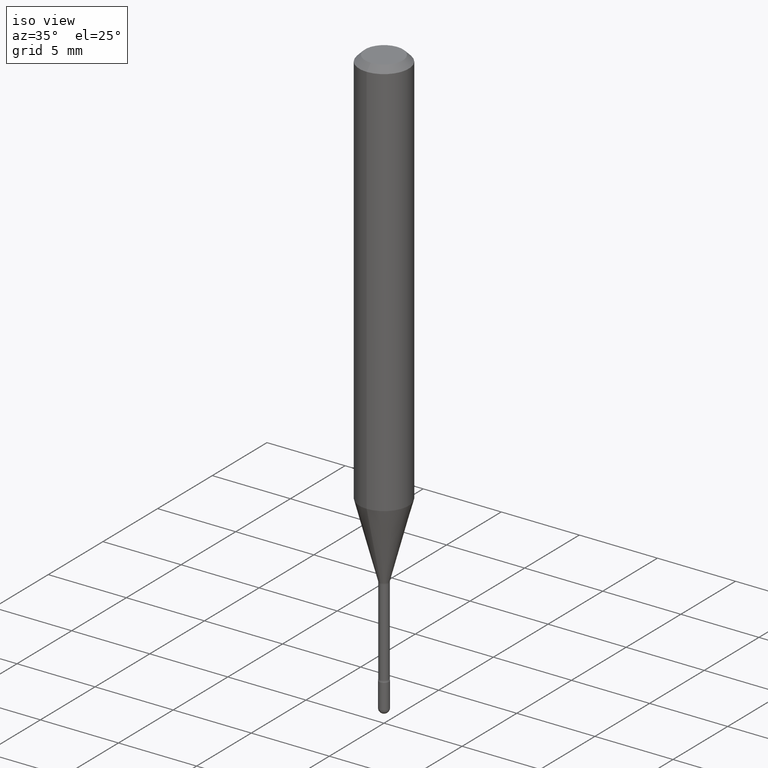
[diagram: clean part render]
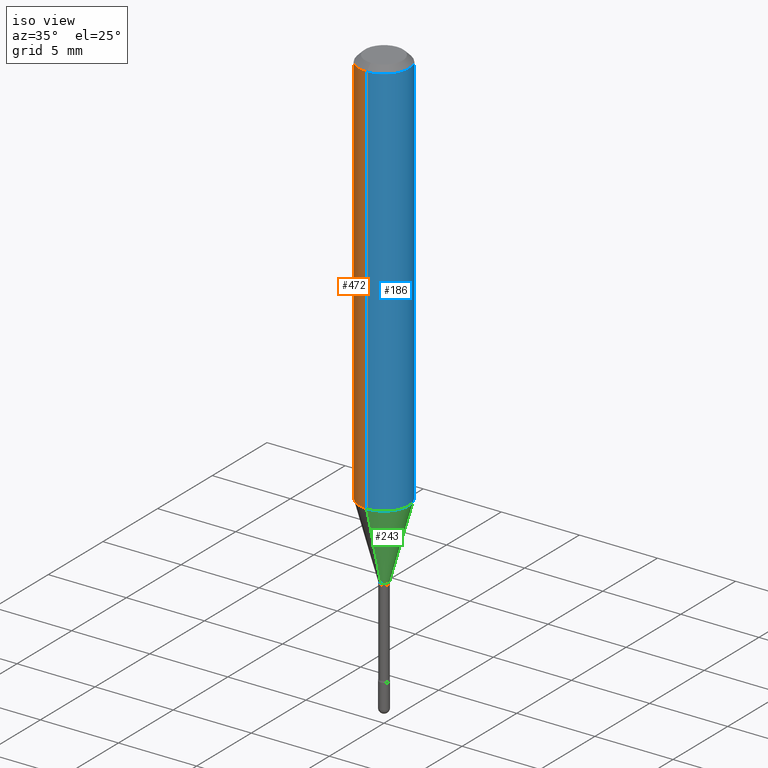
[diagram: same view with three faces highlighted in distinct colors, each labeled with its STEP entity id]
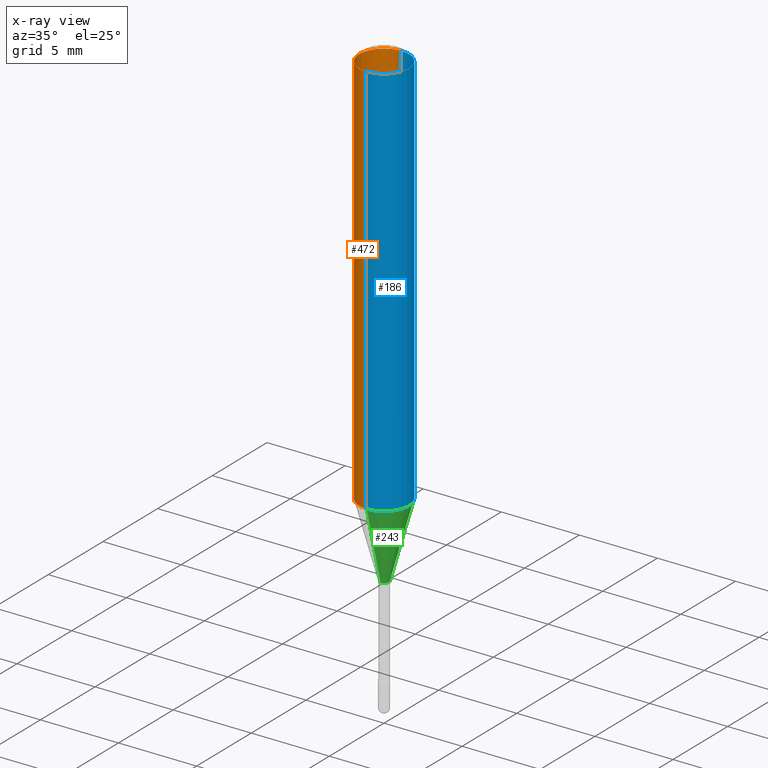
[diagram: x-ray of the same camera — body ghosted, the three highlighted faces saturated]
A machine part, iso view with three faces highlighted in distinct colors.
The next image is the same camera in x-ray (body ghosted, the three faces saturated) — at least one of them is partly hidden behind the body in this view.
Their STEP definitions:

[orange] entity #472 — the highlighted cylindrical surface (edge-blend (fillet) strip) has radius 1.5875 mm, axis along (-0, 0, 1).
#45 = ORIENTED_EDGE ( 'NONE', *, *, #428, .T. ) ;
#59 = DIRECTION ( 'NONE',  ( -2.445561478799539519E-29, 3.491348626384722725E-15, 1.000000000000000000 ) ) ;
#81 = CARTESIAN_POINT ( 'NONE',  ( -4.364351673553912750E-16, -0.06250000000000005551, -0.01499999999999986587 ) ) ;
#90 = VERTEX_POINT ( 'NONE', #372 ) ;
#97 = CARTESIAN_POINT ( 'NONE',  ( -4.364351673553670668E-16, -0.06250000000000353884, -1.010598421515879641 ) ) ;
#107 = EDGE_CURVE ( 'NONE', #260, #197, #143, .T. ) ;
#110 = CARTESIAN_POINT ( 'NONE',  ( -1.169113584055446105E-44, 1.669184350826100908E-30, 4.780733988912460139E-16 ) ) ;
#112 = VECTOR ( 'NONE', #59, 39.37007874015748143 ) ;
#137 = ORIENTED_EDGE ( 'NONE', *, *, #107, .F. ) ;
#143 = CIRCLE ( 'NONE', #460, 0.06250000000000000000 ) ;
#153 = VECTOR ( 'NONE', #309, 39.37007874015748143 ) ;
#183 = CARTESIAN_POINT ( 'NONE',  ( 4.440892098500625669E-16, 0.06250000000000000000, 2.598641097422008436E-16 ) ) ;
#187 = DIRECTION ( 'NONE',  ( -2.445561478799539239E-29, 3.491348626384723119E-15, 1.000000000000000000 ) ) ;
#190 = AXIS2_PLACEMENT_3D ( 'NONE', #110, #466, #551 ) ;
#197 = VERTEX_POINT ( 'NONE', #81 ) ;
#234 = EDGE_CURVE ( 'NONE', #90, #260, #523, .T. ) ;
#260 = VERTEX_POINT ( 'NONE', #313 ) ;
#274 = ORIENTED_EDGE ( 'NONE', *, *, #234, .F. ) ;
#281 = EDGE_LOOP ( 'NONE', ( #274, #443, #45, #137 ) ) ;
#308 = CIRCLE ( 'NONE', #322, 0.06250000000000000000 ) ;
#309 = DIRECTION ( 'NONE',  ( -2.445561478799539519E-29, 3.491348626384722725E-15, 1.000000000000000000 ) ) ;
#312 = VERTEX_POINT ( 'NONE', #97 ) ;
#313 = CARTESIAN_POINT ( 'NONE',  ( 4.440892098500874653E-16, 0.06249999999999993755, -0.01500000000000030129 ) ) ;
#317 = LINE ( 'NONE', #491, #112 ) ;
#322 = AXIS2_PLACEMENT_3D ( 'NONE', #499, #187, #528 ) ;
#328 = CARTESIAN_POINT ( 'NONE',  ( 3.668342218199329335E-31, -5.237022939577113570E-17, -0.01500000000000008271 ) ) ;
#336 = FACE_OUTER_BOUND ( 'NONE', #281, .T. ) ;
#372 = CARTESIAN_POINT ( 'NONE',  ( 4.440892098500871695E-16, 0.06249999999999647504, -1.010598421515880085 ) ) ;
#378 = DIRECTION ( 'NONE',  ( -2.445561478799539239E-29, 3.491348626384723119E-15, 1.000000000000000000 ) ) ;
#400 = EDGE_CURVE ( 'NONE', #90, #312, #308, .T. ) ;
#409 = DIRECTION ( 'NONE',  ( -6.982962677686265922E-15, -1.000000000000000000, 3.483106191921935554E-15 ) ) ;
#428 = EDGE_CURVE ( 'NONE', #312, #197, #317, .T. ) ;
#443 = ORIENTED_EDGE ( 'NONE', *, *, #400, .T. ) ;
#460 = AXIS2_PLACEMENT_3D ( 'NONE', #328, #378, #409 ) ;
#466 = DIRECTION ( 'NONE',  ( -2.445561478799539239E-29, 3.491348626384723119E-15, 1.000000000000000000 ) ) ;
#472 = ADVANCED_FACE ( 'NONE', ( #336 ), #507, .T. ) ;
#491 = CARTESIAN_POINT ( 'NONE',  ( -4.364351673553916201E-16, -0.06250000000000000000, 6.962826880402912828E-16 ) ) ;
#499 = CARTESIAN_POINT ( 'NONE',  ( 2.471480570194855478E-29, -3.528351410786036759E-15, -1.010598421515879863 ) ) ;
#507 = CYLINDRICAL_SURFACE ( 'NONE', #190, 0.06250000000000000000 ) ;
#523 = LINE ( 'NONE', #183, #153 ) ;
#528 = DIRECTION ( 'NONE',  ( -6.982962677686265922E-15, -1.000000000000000000, 4.370956789862821150E-15 ) ) ;
#551 = DIRECTION ( 'NONE',  ( -6.982962677686265922E-15, -1.000000000000000000, 3.491348626384723119E-15 ) ) ;

[blue] entity #186 — the highlighted cylindrical surface (edge-blend (fillet) strip) has radius 1.5875 mm, axis along (-0, 0, 1).
#4 = ORIENTED_EDGE ( 'NONE', *, *, #428, .F. ) ;
#23 = CIRCLE ( 'NONE', #388, 0.06250000000000000000 ) ;
#26 = DIRECTION ( 'NONE',  ( -6.982962677686265922E-15, -1.000000000000000000, 4.370956789862821150E-15 ) ) ;
#35 = FACE_OUTER_BOUND ( 'NONE', #501, .T. ) ;
#39 = CYLINDRICAL_SURFACE ( 'NONE', #113, 0.06250000000000000000 ) ;
#53 = ORIENTED_EDGE ( 'NONE', *, *, #95, .T. ) ;
#56 = ORIENTED_EDGE ( 'NONE', *, *, #234, .T. ) ;
#59 = DIRECTION ( 'NONE',  ( -2.445561478799539519E-29, 3.491348626384722725E-15, 1.000000000000000000 ) ) ;
#81 = CARTESIAN_POINT ( 'NONE',  ( -4.364351673553912750E-16, -0.06250000000000005551, -0.01499999999999986587 ) ) ;
#90 = VERTEX_POINT ( 'NONE', #372 ) ;
#95 = EDGE_CURVE ( 'NONE', #312, #90, #23, .T. ) ;
#97 = CARTESIAN_POINT ( 'NONE',  ( -4.364351673553670668E-16, -0.06250000000000353884, -1.010598421515879641 ) ) ;
#99 = AXIS2_PLACEMENT_3D ( 'NONE', #490, #176, #138 ) ;
#112 = VECTOR ( 'NONE', #59, 39.37007874015748143 ) ;
#113 = AXIS2_PLACEMENT_3D ( 'NONE', #213, #344, #514 ) ;
#138 = DIRECTION ( 'NONE',  ( -6.982962677686265922E-15, -1.000000000000000000, 3.483106191921935554E-15 ) ) ;
#153 = VECTOR ( 'NONE', #309, 39.37007874015748143 ) ;
#176 = DIRECTION ( 'NONE',  ( -2.445561478799539239E-29, 3.491348626384723119E-15, 1.000000000000000000 ) ) ;
#183 = CARTESIAN_POINT ( 'NONE',  ( 4.440892098500625669E-16, 0.06250000000000000000, 2.598641097422008436E-16 ) ) ;
#186 = ADVANCED_FACE ( 'NONE', ( #35 ), #39, .T. ) ;
#197 = VERTEX_POINT ( 'NONE', #81 ) ;
#213 = CARTESIAN_POINT ( 'NONE',  ( -1.169113584055446105E-44, 1.669184350826100908E-30, 4.780733988912460139E-16 ) ) ;
#234 = EDGE_CURVE ( 'NONE', #90, #260, #523, .T. ) ;
#260 = VERTEX_POINT ( 'NONE', #313 ) ;
#263 = EDGE_CURVE ( 'NONE', #197, #260, #347, .T. ) ;
#291 = ORIENTED_EDGE ( 'NONE', *, *, #263, .F. ) ;
#292 = CARTESIAN_POINT ( 'NONE',  ( 2.471480570194855478E-29, -3.528351410786036759E-15, -1.010598421515879863 ) ) ;
#309 = DIRECTION ( 'NONE',  ( -2.445561478799539519E-29, 3.491348626384722725E-15, 1.000000000000000000 ) ) ;
#312 = VERTEX_POINT ( 'NONE', #97 ) ;
#313 = CARTESIAN_POINT ( 'NONE',  ( 4.440892098500874653E-16, 0.06249999999999993755, -0.01500000000000030129 ) ) ;
#317 = LINE ( 'NONE', #491, #112 ) ;
#344 = DIRECTION ( 'NONE',  ( -2.445561478799539239E-29, 3.491348626384723119E-15, 1.000000000000000000 ) ) ;
#347 = CIRCLE ( 'NONE', #99, 0.06250000000000000000 ) ;
#372 = CARTESIAN_POINT ( 'NONE',  ( 4.440892098500871695E-16, 0.06249999999999647504, -1.010598421515880085 ) ) ;
#388 = AXIS2_PLACEMENT_3D ( 'NONE', #292, #416, #26 ) ;
#416 = DIRECTION ( 'NONE',  ( -2.445561478799539239E-29, 3.491348626384723119E-15, 1.000000000000000000 ) ) ;
#428 = EDGE_CURVE ( 'NONE', #312, #197, #317, .T. ) ;
#490 = CARTESIAN_POINT ( 'NONE',  ( 3.668342218199329335E-31, -5.237022939577113570E-17, -0.01500000000000008271 ) ) ;
#491 = CARTESIAN_POINT ( 'NONE',  ( -4.364351673553916201E-16, -0.06250000000000000000, 6.962826880402912828E-16 ) ) ;
#501 = EDGE_LOOP ( 'NONE', ( #53, #56, #291, #4 ) ) ;
#514 = DIRECTION ( 'NONE',  ( -6.982962677686265922E-15, -1.000000000000000000, 3.491348626384723119E-15 ) ) ;
#523 = LINE ( 'NONE', #183, #153 ) ;

[green] entity #243 — the highlighted conical surface has half-angle 15 deg.
#16 = CARTESIAN_POINT ( 'NONE',  ( 2.930008870409523343E-29, -4.182958610396833212E-15, -1.198092501787273223 ) ) ;
#23 = CIRCLE ( 'NONE', #388, 0.06250000000000000000 ) ;
#26 = DIRECTION ( 'NONE',  ( -6.982962677686265922E-15, -1.000000000000000000, 4.370956789862821150E-15 ) ) ;
#54 = CARTESIAN_POINT ( 'NONE',  ( 2.656048273965141059E-16, 0.01226111260565979771, -1.198092501787273223 ) ) ;
#90 = VERTEX_POINT ( 'NONE', #372 ) ;
#91 = ORIENTED_EDGE ( 'NONE', *, *, #401, .T. ) ;
#93 = DIRECTION ( 'NONE',  ( -2.445561478799539239E-29, 3.491348626384723119E-15, 1.000000000000000000 ) ) ;
#95 = EDGE_CURVE ( 'NONE', #312, #90, #23, .T. ) ;
#97 = CARTESIAN_POINT ( 'NONE',  ( -4.364351673553670668E-16, -0.06250000000000353884, -1.010598421515879641 ) ) ;
#102 = VERTEX_POINT ( 'NONE', #204 ) ;
#121 = LINE ( 'NONE', #165, #295 ) ;
#165 = CARTESIAN_POINT ( 'NONE',  ( -8.561889171223086706E-17, -0.01226111260566816255, -1.198092501787273223 ) ) ;
#177 = DIRECTION ( 'NONE',  ( -2.445561478799539239E-29, 3.491348626384723119E-15, 1.000000000000000000 ) ) ;
#179 = EDGE_CURVE ( 'NONE', #102, #312, #121, .T. ) ;
#204 = CARTESIAN_POINT ( 'NONE',  ( -8.561889171223086706E-17, -0.01226111260566816255, -1.198092501787273223 ) ) ;
#229 = CONICAL_SURFACE ( 'NONE', #511, 0.01226111260566397840, 0.2617993877991499629 ) ;
#243 = ADVANCED_FACE ( 'NONE', ( #353 ), #229, .T. ) ;
#244 = ORIENTED_EDGE ( 'NONE', *, *, #515, .T. ) ;
#292 = CARTESIAN_POINT ( 'NONE',  ( 2.471480570194855478E-29, -3.528351410786036759E-15, -1.010598421515879863 ) ) ;
#295 = VECTOR ( 'NONE', #433, 39.37007874015748143 ) ;
#310 = VERTEX_POINT ( 'NONE', #54 ) ;
#312 = VERTEX_POINT ( 'NONE', #97 ) ;
#325 = ORIENTED_EDGE ( 'NONE', *, *, #95, .F. ) ;
#331 = CIRCLE ( 'NONE', #479, 0.01226111260566397840 ) ;
#353 = FACE_OUTER_BOUND ( 'NONE', #461, .T. ) ;
#363 = DIRECTION ( 'NONE',  ( -6.982962677686265922E-15, -1.000000000000000000, 0.000000000000000000 ) ) ;
#365 = LINE ( 'NONE', #457, #370 ) ;
#370 = VECTOR ( 'NONE', #531, 39.37007874015748854 ) ;
#372 = CARTESIAN_POINT ( 'NONE',  ( 4.440892098500871695E-16, 0.06249999999999647504, -1.010598421515880085 ) ) ;
#388 = AXIS2_PLACEMENT_3D ( 'NONE', #292, #416, #26 ) ;
#393 = ORIENTED_EDGE ( 'NONE', *, *, #179, .F. ) ;
#401 = EDGE_CURVE ( 'NONE', #310, #90, #365, .T. ) ;
#416 = DIRECTION ( 'NONE',  ( -2.445561478799539239E-29, 3.491348626384723119E-15, 1.000000000000000000 ) ) ;
#433 = DIRECTION ( 'NONE',  ( -1.807323732225328167E-15, -0.2588190451025179084, 0.9659258262890690894 ) ) ;
#439 = CARTESIAN_POINT ( 'NONE',  ( 2.930008870409523343E-29, -4.182958610396833212E-15, -1.198092501787273223 ) ) ;
#454 = DIRECTION ( 'NONE',  ( -6.982962677686265922E-15, -1.000000000000000000, 0.000000000000000000 ) ) ;
#457 = CARTESIAN_POINT ( 'NONE',  ( 8.712044494294062318E-17, 0.01226111260565979598, -1.198092501787273223 ) ) ;
#461 = EDGE_LOOP ( 'NONE', ( #244, #91, #325, #393 ) ) ;
#479 = AXIS2_PLACEMENT_3D ( 'NONE', #16, #177, #454 ) ;
#511 = AXIS2_PLACEMENT_3D ( 'NONE', #439, #93, #363 ) ;
#515 = EDGE_CURVE ( 'NONE', #102, #310, #331, .T. ) ;
#531 = DIRECTION ( 'NONE',  ( 1.839019923739597949E-15, 0.2588190451025246253, 0.9659258262890670910 ) ) ;